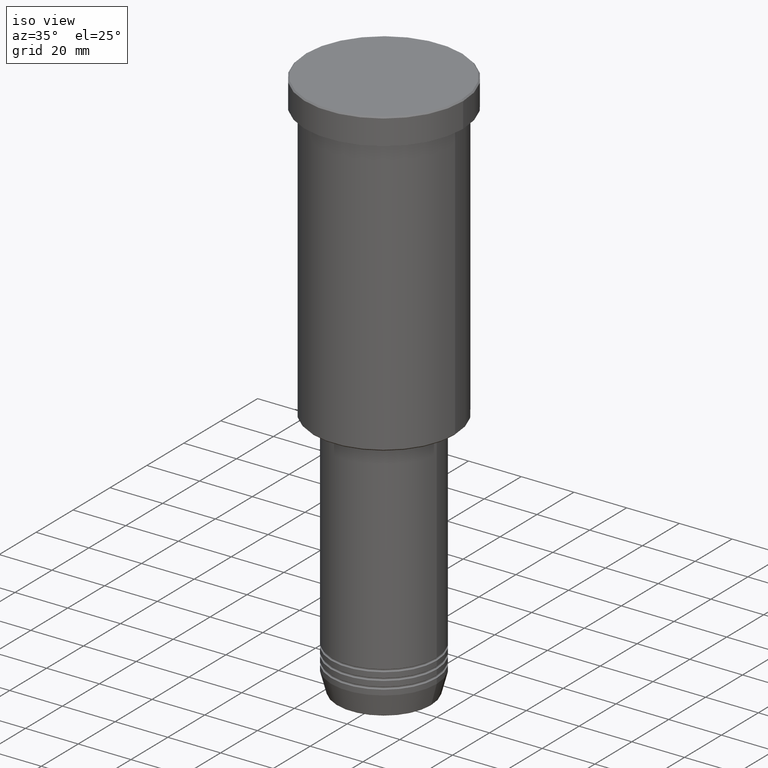
[diagram: clean part render]
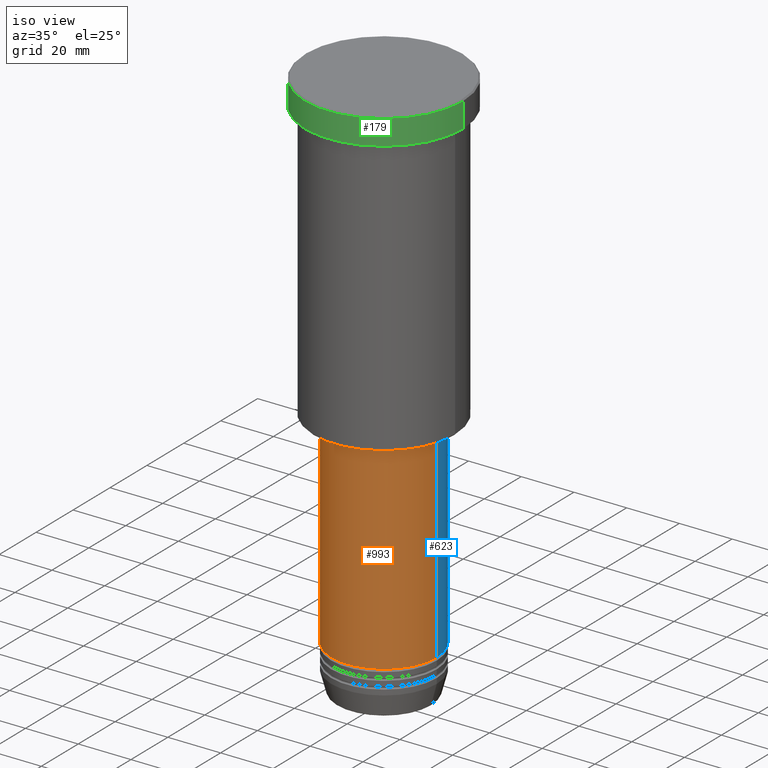
[diagram: same view with three faces highlighted in distinct colors, each labeled with its STEP entity id]
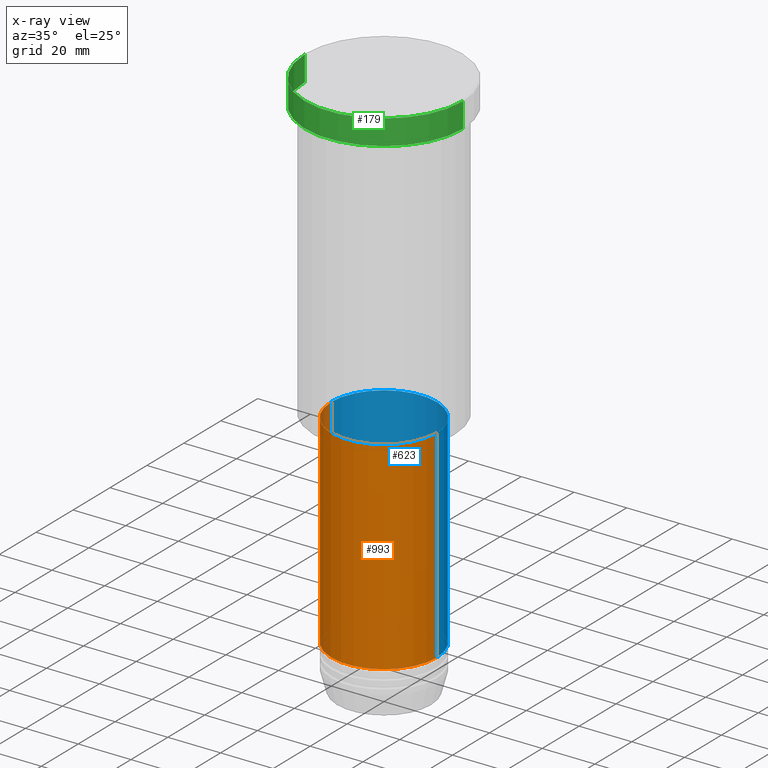
[diagram: x-ray of the same camera — body ghosted, the three highlighted faces saturated]
A machine part, iso view with three faces highlighted in distinct colors.
The next image is the same camera in x-ray (body ghosted, the three faces saturated) — at least one of them is partly hidden behind the body in this view.
Their STEP definitions:

[orange] entity #993 — the highlighted cylindrical surface (partial cylindrical patch) has radius 20 mm, axis along (-0, -0, 1).
#2 = EDGE_LOOP ( 'NONE', ( #829, #91, #1029, #199 ) ) ;
#91 = ORIENTED_EDGE ( 'NONE', *, *, #926, .T. ) ;
#124 = DIRECTION ( 'NONE',  ( 1.000000000000000000, 0.000000000000000000, 0.000000000000000000 ) ) ;
#160 = EDGE_CURVE ( 'NONE', #596, #661, #426, .T. ) ;
#199 = ORIENTED_EDGE ( 'NONE', *, *, #160, .F. ) ;
#274 = EDGE_CURVE ( 'NONE', #1069, #596, #681, .T. ) ;
#279 = CYLINDRICAL_SURFACE ( 'NONE', #944, 20.00000000000000000 ) ;
#304 = DIRECTION ( 'NONE',  ( -0.000000000000000000, -0.000000000000000000, 1.000000000000000000 ) ) ;
#312 = DIRECTION ( 'NONE',  ( -0.000000000000000000, -0.000000000000000000, 1.000000000000000000 ) ) ;
#353 = DIRECTION ( 'NONE',  ( -0.000000000000000000, -0.000000000000000000, 1.000000000000000000 ) ) ;
#383 = CARTESIAN_POINT ( 'NONE',  ( 20.00000000000000000, 0.000000000000000000, -193.9999999999999716 ) ) ;
#394 = VECTOR ( 'NONE', #304, 1000.000000000000000 ) ;
#406 = CARTESIAN_POINT ( 'NONE',  ( -20.00000000000000000, 2.449293598294706513E-15, 0.000000000000000000 ) ) ;
#426 = CIRCLE ( 'NONE', #733, 20.00000000000000000 ) ;
#596 = VERTEX_POINT ( 'NONE', #915 ) ;
#635 = DIRECTION ( 'NONE',  ( -0.000000000000000000, -0.000000000000000000, 1.000000000000000000 ) ) ;
#656 = VECTOR ( 'NONE', #782, 1000.000000000000000 ) ;
#659 = AXIS2_PLACEMENT_3D ( 'NONE', #882, #353, #978 ) ;
#661 = VERTEX_POINT ( 'NONE', #680 ) ;
#680 = CARTESIAN_POINT ( 'NONE',  ( 20.00000000000000000, 0.000000000000000000, -117.0000000000000142 ) ) ;
#681 = LINE ( 'NONE', #406, #656 ) ;
#727 = CARTESIAN_POINT ( 'NONE',  ( 20.00000000000000000, 0.000000000000000000, 0.000000000000000000 ) ) ;
#733 = AXIS2_PLACEMENT_3D ( 'NONE', #840, #312, #124 ) ;
#742 = DIRECTION ( 'NONE',  ( 1.000000000000000000, 0.000000000000000000, 0.000000000000000000 ) ) ;
#747 = FACE_OUTER_BOUND ( 'NONE', #2, .T. ) ;
#782 = DIRECTION ( 'NONE',  ( -0.000000000000000000, -0.000000000000000000, 1.000000000000000000 ) ) ;
#821 = CARTESIAN_POINT ( 'NONE',  ( -20.00000000000000000, 2.449293598294706513E-15, -193.9999999999999716 ) ) ;
#829 = ORIENTED_EDGE ( 'NONE', *, *, #274, .F. ) ;
#840 = CARTESIAN_POINT ( 'NONE',  ( 0.000000000000000000, 0.000000000000000000, -117.0000000000000142 ) ) ;
#882 = CARTESIAN_POINT ( 'NONE',  ( 0.000000000000000000, 0.000000000000000000, -193.9999999999999716 ) ) ;
#915 = CARTESIAN_POINT ( 'NONE',  ( -20.00000000000000000, 2.449293598294706513E-15, -117.0000000000000142 ) ) ;
#926 = EDGE_CURVE ( 'NONE', #1069, #989, #1026, .T. ) ;
#944 = AXIS2_PLACEMENT_3D ( 'NONE', #1091, #635, #742 ) ;
#978 = DIRECTION ( 'NONE',  ( 1.000000000000000000, 0.000000000000000000, 0.000000000000000000 ) ) ;
#989 = VERTEX_POINT ( 'NONE', #383 ) ;
#993 = ADVANCED_FACE ( 'NONE', ( #747 ), #279, .T. ) ;
#1026 = CIRCLE ( 'NONE', #659, 20.00000000000000000 ) ;
#1027 = EDGE_CURVE ( 'NONE', #989, #661, #1112, .T. ) ;
#1029 = ORIENTED_EDGE ( 'NONE', *, *, #1027, .T. ) ;
#1069 = VERTEX_POINT ( 'NONE', #821 ) ;
#1091 = CARTESIAN_POINT ( 'NONE',  ( 0.000000000000000000, 0.000000000000000000, 0.000000000000000000 ) ) ;
#1112 = LINE ( 'NONE', #727, #394 ) ;

[blue] entity #623 — the highlighted cylindrical surface (partial cylindrical patch) has radius 20 mm, axis along (-0, -0, 1).
#1 = CARTESIAN_POINT ( 'NONE',  ( 0.000000000000000000, 0.000000000000000000, -117.0000000000000142 ) ) ;
#46 = CIRCLE ( 'NONE', #354, 20.00000000000000000 ) ;
#68 = ORIENTED_EDGE ( 'NONE', *, *, #274, .T. ) ;
#202 = CARTESIAN_POINT ( 'NONE',  ( 0.000000000000000000, 0.000000000000000000, 0.000000000000000000 ) ) ;
#261 = DIRECTION ( 'NONE',  ( 1.000000000000000000, 0.000000000000000000, 0.000000000000000000 ) ) ;
#274 = EDGE_CURVE ( 'NONE', #1069, #596, #681, .T. ) ;
#304 = DIRECTION ( 'NONE',  ( -0.000000000000000000, -0.000000000000000000, 1.000000000000000000 ) ) ;
#342 = DIRECTION ( 'NONE',  ( -0.000000000000000000, -0.000000000000000000, 1.000000000000000000 ) ) ;
#349 = DIRECTION ( 'NONE',  ( -0.000000000000000000, -0.000000000000000000, 1.000000000000000000 ) ) ;
#354 = AXIS2_PLACEMENT_3D ( 'NONE', #1, #349, #261 ) ;
#383 = CARTESIAN_POINT ( 'NONE',  ( 20.00000000000000000, 0.000000000000000000, -193.9999999999999716 ) ) ;
#394 = VECTOR ( 'NONE', #304, 1000.000000000000000 ) ;
#406 = CARTESIAN_POINT ( 'NONE',  ( -20.00000000000000000, 2.449293598294706513E-15, 0.000000000000000000 ) ) ;
#422 = EDGE_CURVE ( 'NONE', #661, #596, #46, .T. ) ;
#484 = FACE_OUTER_BOUND ( 'NONE', #885, .T. ) ;
#499 = ORIENTED_EDGE ( 'NONE', *, *, #881, .T. ) ;
#512 = ORIENTED_EDGE ( 'NONE', *, *, #1027, .F. ) ;
#540 = CARTESIAN_POINT ( 'NONE',  ( 0.000000000000000000, 0.000000000000000000, -193.9999999999999716 ) ) ;
#596 = VERTEX_POINT ( 'NONE', #915 ) ;
#623 = ADVANCED_FACE ( 'NONE', ( #484 ), #655, .T. ) ;
#637 = DIRECTION ( 'NONE',  ( -0.000000000000000000, -0.000000000000000000, 1.000000000000000000 ) ) ;
#655 = CYLINDRICAL_SURFACE ( 'NONE', #870, 20.00000000000000000 ) ;
#656 = VECTOR ( 'NONE', #782, 1000.000000000000000 ) ;
#661 = VERTEX_POINT ( 'NONE', #680 ) ;
#680 = CARTESIAN_POINT ( 'NONE',  ( 20.00000000000000000, 0.000000000000000000, -117.0000000000000142 ) ) ;
#681 = LINE ( 'NONE', #406, #656 ) ;
#727 = CARTESIAN_POINT ( 'NONE',  ( 20.00000000000000000, 0.000000000000000000, 0.000000000000000000 ) ) ;
#782 = DIRECTION ( 'NONE',  ( -0.000000000000000000, -0.000000000000000000, 1.000000000000000000 ) ) ;
#821 = CARTESIAN_POINT ( 'NONE',  ( -20.00000000000000000, 2.449293598294706513E-15, -193.9999999999999716 ) ) ;
#846 = ORIENTED_EDGE ( 'NONE', *, *, #422, .F. ) ;
#850 = AXIS2_PLACEMENT_3D ( 'NONE', #540, #342, #895 ) ;
#870 = AXIS2_PLACEMENT_3D ( 'NONE', #202, #637, #927 ) ;
#881 = EDGE_CURVE ( 'NONE', #989, #1069, #887, .T. ) ;
#885 = EDGE_LOOP ( 'NONE', ( #499, #68, #846, #512 ) ) ;
#887 = CIRCLE ( 'NONE', #850, 20.00000000000000000 ) ;
#895 = DIRECTION ( 'NONE',  ( 1.000000000000000000, 0.000000000000000000, 0.000000000000000000 ) ) ;
#915 = CARTESIAN_POINT ( 'NONE',  ( -20.00000000000000000, 2.449293598294706513E-15, -117.0000000000000142 ) ) ;
#927 = DIRECTION ( 'NONE',  ( 1.000000000000000000, 0.000000000000000000, 0.000000000000000000 ) ) ;
#989 = VERTEX_POINT ( 'NONE', #383 ) ;
#1027 = EDGE_CURVE ( 'NONE', #989, #661, #1112, .T. ) ;
#1069 = VERTEX_POINT ( 'NONE', #821 ) ;
#1112 = LINE ( 'NONE', #727, #394 ) ;

[green] entity #179 — the highlighted cylindrical surface (partial cylindrical patch) has radius 30 mm, axis along (-0, -0, 1).
#4 = ORIENTED_EDGE ( 'NONE', *, *, #54, .F. ) ;
#47 = CARTESIAN_POINT ( 'NONE',  ( 30.00000000000000000, 0.000000000000000000, -9.999999999999992895 ) ) ;
#54 = EDGE_CURVE ( 'NONE', #700, #1002, #288, .T. ) ;
#164 = DIRECTION ( 'NONE',  ( -0.000000000000000000, -0.000000000000000000, 1.000000000000000000 ) ) ;
#179 = ADVANCED_FACE ( 'NONE', ( #827 ), #375, .T. ) ;
#205 = AXIS2_PLACEMENT_3D ( 'NONE', #569, #758, #739 ) ;
#221 = CARTESIAN_POINT ( 'NONE',  ( -30.00000000000000000, 3.673940397442059178E-15, 0.000000000000000000 ) ) ;
#260 = VECTOR ( 'NONE', #164, 1000.000000000000000 ) ;
#273 = DIRECTION ( 'NONE',  ( -0.000000000000000000, -0.000000000000000000, 1.000000000000000000 ) ) ;
#288 = LINE ( 'NONE', #221, #594 ) ;
#308 = ORIENTED_EDGE ( 'NONE', *, *, #841, .T. ) ;
#320 = CIRCLE ( 'NONE', #1175, 30.00000000000000000 ) ;
#331 = CARTESIAN_POINT ( 'NONE',  ( 0.000000000000000000, 0.000000000000000000, -0.4999999999999518718 ) ) ;
#344 = EDGE_CURVE ( 'NONE', #750, #444, #576, .T. ) ;
#375 = CYLINDRICAL_SURFACE ( 'NONE', #205, 30.00000000000000000 ) ;
#444 = VERTEX_POINT ( 'NONE', #988 ) ;
#459 = CARTESIAN_POINT ( 'NONE',  ( -30.00000000000000000, 3.673940397442059178E-15, -0.4999999999999518718 ) ) ;
#462 = DIRECTION ( 'NONE',  ( -0.000000000000000000, -0.000000000000000000, 1.000000000000000000 ) ) ;
#507 = CIRCLE ( 'NONE', #636, 30.00000000000000000 ) ;
#518 = ORIENTED_EDGE ( 'NONE', *, *, #676, .T. ) ;
#569 = CARTESIAN_POINT ( 'NONE',  ( 0.000000000000000000, 0.000000000000000000, 0.000000000000000000 ) ) ;
#576 = LINE ( 'NONE', #979, #260 ) ;
#588 = DIRECTION ( 'NONE',  ( 0.000000000000000000, 0.000000000000000000, -1.000000000000000000 ) ) ;
#594 = VECTOR ( 'NONE', #462, 1000.000000000000000 ) ;
#633 = EDGE_LOOP ( 'NONE', ( #4, #308, #892, #518 ) ) ;
#636 = AXIS2_PLACEMENT_3D ( 'NONE', #331, #588, #767 ) ;
#676 = EDGE_CURVE ( 'NONE', #444, #1002, #507, .T. ) ;
#700 = VERTEX_POINT ( 'NONE', #950 ) ;
#739 = DIRECTION ( 'NONE',  ( 1.000000000000000000, 0.000000000000000000, 0.000000000000000000 ) ) ;
#750 = VERTEX_POINT ( 'NONE', #47 ) ;
#758 = DIRECTION ( 'NONE',  ( -0.000000000000000000, -0.000000000000000000, 1.000000000000000000 ) ) ;
#767 = DIRECTION ( 'NONE',  ( 1.000000000000000000, 0.000000000000000000, 0.000000000000000000 ) ) ;
#800 = CARTESIAN_POINT ( 'NONE',  ( 0.000000000000000000, 0.000000000000000000, -9.999999999999992895 ) ) ;
#827 = FACE_OUTER_BOUND ( 'NONE', #633, .T. ) ;
#841 = EDGE_CURVE ( 'NONE', #700, #750, #320, .T. ) ;
#892 = ORIENTED_EDGE ( 'NONE', *, *, #344, .T. ) ;
#950 = CARTESIAN_POINT ( 'NONE',  ( -30.00000000000000000, 3.673940397442059178E-15, -9.999999999999992895 ) ) ;
#979 = CARTESIAN_POINT ( 'NONE',  ( 30.00000000000000000, 0.000000000000000000, 0.000000000000000000 ) ) ;
#988 = CARTESIAN_POINT ( 'NONE',  ( 30.00000000000000000, 0.000000000000000000, -0.4999999999999518718 ) ) ;
#1002 = VERTEX_POINT ( 'NONE', #459 ) ;
#1166 = DIRECTION ( 'NONE',  ( 1.000000000000000000, 0.000000000000000000, 0.000000000000000000 ) ) ;
#1175 = AXIS2_PLACEMENT_3D ( 'NONE', #800, #273, #1166 ) ;